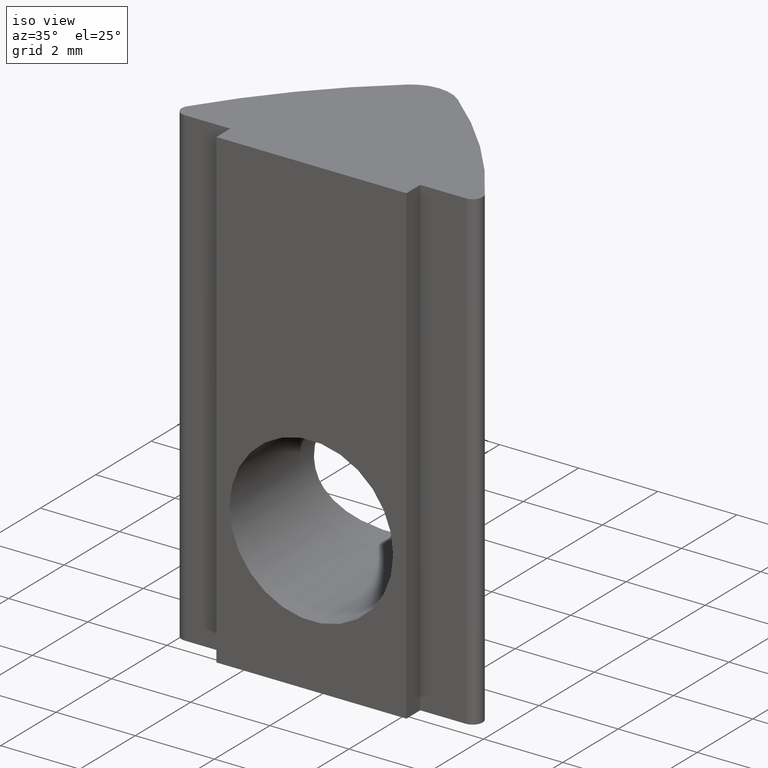
[diagram: clean part render]
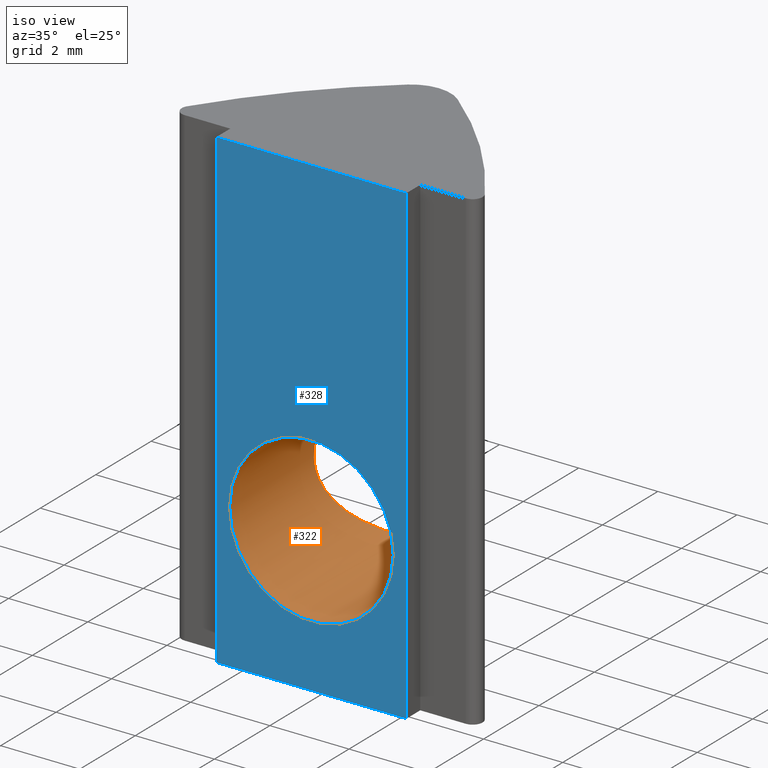
[diagram: same view with the hole feature highlighted: cylindrical wall and planar end face, labeled with their STEP entity ids]
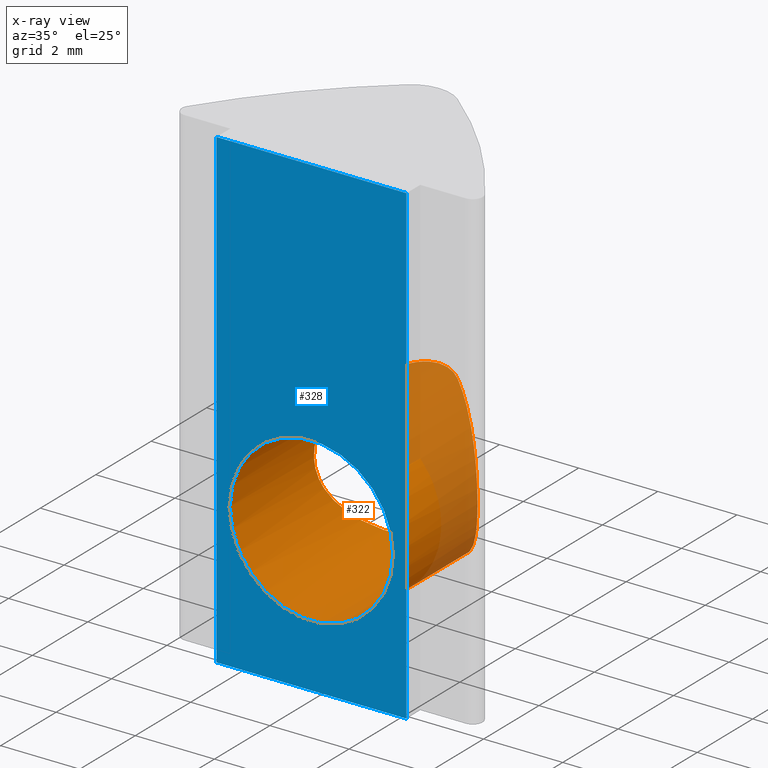
[diagram: x-ray of the same camera — body ghosted, the hole faces saturated]
A machine part, iso view. The highlighted faces form one hole feature of diameter 4.134 mm: the cylindrical wall (entity #322, orange) and its adjacent planar end face (entity #328, blue) — they share a circular edge in the B-rep.
The next image is the same camera in x-ray (body ghosted, the hole faces saturated) — the bore reads through the body.
Wall:
#26=LINE('',#604,#51);
#51=VECTOR('',#407,2.067);
#73=CYLINDRICAL_SURFACE('',#364,2.067);
#85=B_SPLINE_CURVE_WITH_KNOTS('',3,(#547,#548,#549,#550,#551,#552,#553,
#554,#555,#556,#557,#558,#559,#560,#561,#562,#563,#564,#565),
 .UNSPECIFIED.,.F.,.F.,(4,2,2,2,3,2,2,2,4),(-0.286283568432204,-0.260299763078017,
-0.156999544743615,-0.0784997723718073,0.,0.0784997723718075,0.156999544743615,
0.260299763078018,0.286283568432204),.UNSPECIFIED.);
#86=B_SPLINE_CURVE_WITH_KNOTS('',3,(#579,#580,#581,#582,#583,#584),
 .UNSPECIFIED.,.F.,.F.,(4,2,4),(0.0872414017810655,0.11519399132676,0.1535318703133),
 .UNSPECIFIED.);
#87=B_SPLINE_CURVE_WITH_KNOTS('',3,(#585,#586,#587,#588,#589,#590),
 .UNSPECIFIED.,.F.,.F.,(4,2,4),(0.1535318703133,0.191869749299839,0.219822338845534),
 .UNSPECIFIED.);
#88=B_SPLINE_CURVE_WITH_KNOTS('',3,(#593,#594,#595,#596,#597,#598,#599,
#600,#601,#602),.UNSPECIFIED.,.F.,.F.,(4,2,2,2,4),(0.703945840424951,0.782445612796759,
0.860945385168566,0.964245603502969,0.990229408857155),.UNSPECIFIED.);
#89=B_SPLINE_CURVE_WITH_KNOTS('',3,(#607,#608,#609,#610,#611,#612,#613,
#614,#615,#616),.UNSPECIFIED.,.F.,.F.,(4,2,2,2,4),(0.417662271992747,0.443646077346934,
0.546946295681336,0.625446068053144,0.703945840424951),.UNSPECIFIED.);
#90=B_SPLINE_CURVE_WITH_KNOTS('',3,(#618,#619,#620,#621,#622,#623),
 .UNSPECIFIED.,.F.,.F.,(4,2,4),(0.4605956109399,0.498933489926439,0.526886079472134),
 .UNSPECIFIED.);
#91=B_SPLINE_CURVE_WITH_KNOTS('',3,(#624,#625,#626,#627,#628,#629),
 .UNSPECIFIED.,.F.,.F.,(4,2,4),(0.394305142407665,0.42225773195336,0.4605956109399),
 .UNSPECIFIED.);
#95=FACE_OUTER_BOUND('',#112,.T.);
#112=EDGE_LOOP('',(#239,#240,#241,#242,#243,#244,#245,#246,#247,#248));
#129=CIRCLE('',#365,2.067);
#144=VERTEX_POINT('',#544);
#145=VERTEX_POINT('',#546);
#150=VERTEX_POINT('',#576);
#151=VERTEX_POINT('',#578);
#152=VERTEX_POINT('',#592);
#153=VERTEX_POINT('',#603);
#154=VERTEX_POINT('',#606);
#155=VERTEX_POINT('',#617);
#178=EDGE_CURVE('',#144,#145,#85,.T.);
#185=EDGE_CURVE('',#150,#151,#86,.T.);
#186=EDGE_CURVE('',#151,#144,#87,.T.);
#187=EDGE_CURVE('',#152,#150,#88,.T.);
#188=EDGE_CURVE('',#152,#153,#26,.T.);
#189=EDGE_CURVE('',#153,#153,#129,.T.);
#190=EDGE_CURVE('',#154,#152,#89,.T.);
#191=EDGE_CURVE('',#155,#154,#90,.T.);
#192=EDGE_CURVE('',#145,#155,#91,.T.);
#239=ORIENTED_EDGE('',*,*,#186,.F.);
#240=ORIENTED_EDGE('',*,*,#185,.F.);
#241=ORIENTED_EDGE('',*,*,#187,.F.);
#242=ORIENTED_EDGE('',*,*,#188,.T.);
#243=ORIENTED_EDGE('',*,*,#189,.F.);
#244=ORIENTED_EDGE('',*,*,#188,.F.);
#245=ORIENTED_EDGE('',*,*,#190,.F.);
#246=ORIENTED_EDGE('',*,*,#191,.F.);
#247=ORIENTED_EDGE('',*,*,#192,.F.);
#248=ORIENTED_EDGE('',*,*,#178,.F.);
#322=ADVANCED_FACE('',(#95),#73,.F.);
#364=AXIS2_PLACEMENT_3D('',#591,#405,#406);
#365=AXIS2_PLACEMENT_3D('',#605,#408,#409);
#405=DIRECTION('center_axis',(0.,1.,0.));
#406=DIRECTION('ref_axis',(-1.,0.,0.));
#407=DIRECTION('',(0.,-1.,0.));
#408=DIRECTION('center_axis',(0.,1.,0.));
#409=DIRECTION('ref_axis',(-1.,0.,0.));
#544=CARTESIAN_POINT('',(-0.631143439405981,3.87566613880895,5.61828528391968));
#546=CARTESIAN_POINT('',(-0.631143439405981,3.87566613880895,1.68171471608032));
#547=CARTESIAN_POINT('Ctrl Pts',(-0.631143439405981,3.87566613880895,5.61828528391968));
#548=CARTESIAN_POINT('Ctrl Pts',(-0.700715214525055,3.81905702924842,5.59597664309766));
#549=CARTESIAN_POINT('Ctrl Pts',(-0.769324732579398,3.7621884317586,5.56990023812555));
#550=CARTESIAN_POINT('Ctrl Pts',(-1.10332029276051,3.4804097977902,5.42210001242868));
#551=CARTESIAN_POINT('Ctrl Pts',(-1.34611249702222,3.25867174026444,5.24519790188727));
#552=CARTESIAN_POINT('Ctrl Pts',(-1.68680165522947,2.93235155290387,4.86482703647551));
#553=CARTESIAN_POINT('Ctrl Pts',(-1.82417974807126,2.79430062165635,4.65528488868013));
#554=CARTESIAN_POINT('Ctrl Pts',(-2.01451277015602,2.59851338943832,4.17911914888874));
#555=CARTESIAN_POINT('Ctrl Pts',(-2.067,2.54234446706531,3.91166590790602));
#556=CARTESIAN_POINT('Ctrl Pts',(-2.067,2.54234446706531,3.65));
#557=CARTESIAN_POINT('Ctrl Pts',(-2.067,2.54234446706531,3.38833409209398));
#558=CARTESIAN_POINT('Ctrl Pts',(-2.01451277015602,2.59851338943832,3.12088085111126));
#559=CARTESIAN_POINT('Ctrl Pts',(-1.82417974807126,2.79430062165635,2.64471511131987));
#560=CARTESIAN_POINT('Ctrl Pts',(-1.68680165522946,2.93235155290387,2.43517296352449));
#561=CARTESIAN_POINT('Ctrl Pts',(-1.34611249702222,3.25867174026445,2.05480209811273));
#562=CARTESIAN_POINT('Ctrl Pts',(-1.1033202927605,3.4804097977902,1.87789998757132));
#563=CARTESIAN_POINT('Ctrl Pts',(-0.769324732579395,3.7621884317586,1.73009976187445));
#564=CARTESIAN_POINT('Ctrl Pts',(-0.700715214525055,3.81905702924842,1.70402335690234));
#565=CARTESIAN_POINT('Ctrl Pts',(-0.631143439405981,3.87566613880895,1.68171471608032));
#576=CARTESIAN_POINT('',(0.631143439405981,3.87566613880895,5.61828528391968));
#578=CARTESIAN_POINT('',(0.,4.1,5.717));
#579=CARTESIAN_POINT('Ctrl Pts',(0.63114343940598,3.87566613880895,5.61828528391968));
#580=CARTESIAN_POINT('Ctrl Pts',(0.558781730004034,3.93454535999472,5.64148853526051));
#581=CARTESIAN_POINT('Ctrl Pts',(0.475243844961245,3.9851993132794,5.6636915062642));
#582=CARTESIAN_POINT('Ctrl Pts',(0.262709390187156,4.07402830726881,5.70405106810921));
#583=CARTESIAN_POINT('Ctrl Pts',(0.127792929955132,4.1,5.717));
#584=CARTESIAN_POINT('Ctrl Pts',(1.04083408558608E-16,4.1,5.717));
#585=CARTESIAN_POINT('Ctrl Pts',(1.73472347597681E-16,4.1,5.717));
#586=CARTESIAN_POINT('Ctrl Pts',(-0.127792929955132,4.1,5.717));
#587=CARTESIAN_POINT('Ctrl Pts',(-0.262709390187156,4.07402830726881,5.70405106810921));
#588=CARTESIAN_POINT('Ctrl Pts',(-0.475243844961245,3.9851993132794,5.6636915062642));
#589=CARTESIAN_POINT('Ctrl Pts',(-0.558781730004034,3.93454535999472,5.64148853526051));
#590=CARTESIAN_POINT('Ctrl Pts',(-0.63114343940598,3.87566613880895,5.61828528391968));
#591=CARTESIAN_POINT('Origin',(0.,-10.8305056846712,3.65));
#592=CARTESIAN_POINT('',(2.067,2.54234446706531,3.65));
#593=CARTESIAN_POINT('Ctrl Pts',(2.067,2.54234446706531,3.65));
#594=CARTESIAN_POINT('Ctrl Pts',(2.067,2.54234446706531,3.91166590790602));
#595=CARTESIAN_POINT('Ctrl Pts',(2.01451277015602,2.59851338943832,4.17911914888874));
#596=CARTESIAN_POINT('Ctrl Pts',(1.82417974807126,2.79430062165635,4.65528488868013));
#597=CARTESIAN_POINT('Ctrl Pts',(1.68680165522947,2.93235155290387,4.86482703647551));
#598=CARTESIAN_POINT('Ctrl Pts',(1.34611249702222,3.25867174026444,5.24519790188727));
#599=CARTESIAN_POINT('Ctrl Pts',(1.10332029276051,3.4804097977902,5.42210001242868));
#600=CARTESIAN_POINT('Ctrl Pts',(0.769324732579396,3.7621884317586,5.56990023812555));
#601=CARTESIAN_POINT('Ctrl Pts',(0.700715214525055,3.81905702924842,5.59597664309766));
#602=CARTESIAN_POINT('Ctrl Pts',(0.631143439405981,3.87566613880895,5.61828528391968));
#603=CARTESIAN_POINT('',(2.067,-0.5,3.65));
#604=CARTESIAN_POINT('',(2.067,-10.8305056846712,3.65));
#605=CARTESIAN_POINT('Origin',(0.,-0.5,3.65));
#606=CARTESIAN_POINT('',(0.631143439405981,3.87566613880895,1.68171471608032));
#607=CARTESIAN_POINT('Ctrl Pts',(0.631143439405981,3.87566613880895,1.68171471608032));
#608=CARTESIAN_POINT('Ctrl Pts',(0.700715214525055,3.81905702924842,1.70402335690234));
#609=CARTESIAN_POINT('Ctrl Pts',(0.769324732579396,3.7621884317586,1.73009976187445));
#610=CARTESIAN_POINT('Ctrl Pts',(1.10332029276051,3.4804097977902,1.87789998757132));
#611=CARTESIAN_POINT('Ctrl Pts',(1.34611249702222,3.25867174026444,2.05480209811273));
#612=CARTESIAN_POINT('Ctrl Pts',(1.68680165522947,2.93235155290387,2.43517296352449));
#613=CARTESIAN_POINT('Ctrl Pts',(1.82417974807126,2.79430062165635,2.64471511131987));
#614=CARTESIAN_POINT('Ctrl Pts',(2.01451277015602,2.59851338943832,3.12088085111126));
#615=CARTESIAN_POINT('Ctrl Pts',(2.067,2.54234446706531,3.38833409209398));
#616=CARTESIAN_POINT('Ctrl Pts',(2.067,2.54234446706531,3.65));
#617=CARTESIAN_POINT('',(0.,4.1,1.583));
#618=CARTESIAN_POINT('Ctrl Pts',(1.04083408558608E-16,4.1,1.583));
#619=CARTESIAN_POINT('Ctrl Pts',(0.127792929955132,4.1,1.583));
#620=CARTESIAN_POINT('Ctrl Pts',(0.262709390187156,4.07402830726881,1.59594893189079));
#621=CARTESIAN_POINT('Ctrl Pts',(0.475243844961245,3.9851993132794,1.6363084937358));
#622=CARTESIAN_POINT('Ctrl Pts',(0.558781730004034,3.93454535999472,1.65851146473949));
#623=CARTESIAN_POINT('Ctrl Pts',(0.63114343940598,3.87566613880895,1.68171471608032));
#624=CARTESIAN_POINT('Ctrl Pts',(-0.63114343940598,3.87566613880895,1.68171471608032));
#625=CARTESIAN_POINT('Ctrl Pts',(-0.558781730004034,3.93454535999472,1.65851146473949));
#626=CARTESIAN_POINT('Ctrl Pts',(-0.475243844961245,3.9851993132794,1.6363084937358));
#627=CARTESIAN_POINT('Ctrl Pts',(-0.262709390187156,4.07402830726881,1.59594893189079));
#628=CARTESIAN_POINT('Ctrl Pts',(-0.127792929955132,4.1,1.583));
#629=CARTESIAN_POINT('Ctrl Pts',(1.73472347597681E-16,4.1,1.583));
End face:
#16=PLANE('',#375);
#36=LINE('',#658,#61);
#37=LINE('',#661,#62);
#38=LINE('',#663,#63);
#39=LINE('',#664,#64);
#61=VECTOR('',#437,10.);
#62=VECTOR('',#440,10.);
#63=VECTOR('',#441,10.);
#64=VECTOR('',#442,10.);
#80=FACE_BOUND('',#119,.T.);
#101=FACE_OUTER_BOUND('',#118,.T.);
#118=EDGE_LOOP('',(#275,#276,#277,#278));
#119=EDGE_LOOP('',(#279));
#129=CIRCLE('',#365,2.067);
#153=VERTEX_POINT('',#603);
#164=VERTEX_POINT('',#654);
#165=VERTEX_POINT('',#656);
#166=VERTEX_POINT('',#660);
#167=VERTEX_POINT('',#662);
#189=EDGE_CURVE('',#153,#153,#129,.T.);
#206=EDGE_CURVE('',#164,#165,#36,.T.);
#207=EDGE_CURVE('',#164,#166,#37,.T.);
#208=EDGE_CURVE('',#167,#165,#38,.T.);
#209=EDGE_CURVE('',#166,#167,#39,.T.);
#275=ORIENTED_EDGE('',*,*,#207,.F.);
#276=ORIENTED_EDGE('',*,*,#206,.T.);
#277=ORIENTED_EDGE('',*,*,#208,.F.);
#278=ORIENTED_EDGE('',*,*,#209,.F.);
#279=ORIENTED_EDGE('',*,*,#189,.T.);
#328=ADVANCED_FACE('',(#101,#80),#16,.T.);
#365=AXIS2_PLACEMENT_3D('',#605,#408,#409);
#375=AXIS2_PLACEMENT_3D('',#659,#438,#439);
#408=DIRECTION('center_axis',(0.,1.,0.));
#409=DIRECTION('ref_axis',(-1.,0.,0.));
#437=DIRECTION('',(0.,0.,1.));
#438=DIRECTION('center_axis',(0.,-1.,0.));
#439=DIRECTION('ref_axis',(1.,0.,0.));
#440=DIRECTION('',(-1.,0.,0.));
#441=DIRECTION('',(1.,0.,0.));
#442=DIRECTION('',(0.,0.,1.));
#603=CARTESIAN_POINT('',(2.067,-0.5,3.65));
#605=CARTESIAN_POINT('Origin',(0.,-0.5,3.65));
#654=CARTESIAN_POINT('',(2.4,-0.5,0.));
#656=CARTESIAN_POINT('',(2.4,-0.5,12.));
#658=CARTESIAN_POINT('',(2.4,-0.5,0.));
#659=CARTESIAN_POINT('Origin',(-2.4,-0.5,0.));
#660=CARTESIAN_POINT('',(-2.4,-0.5,0.));
#661=CARTESIAN_POINT('',(2.4,-0.5,0.));
#662=CARTESIAN_POINT('',(-2.4,-0.5,12.));
#663=CARTESIAN_POINT('',(2.4,-0.5,12.));
#664=CARTESIAN_POINT('',(-2.4,-0.5,0.));